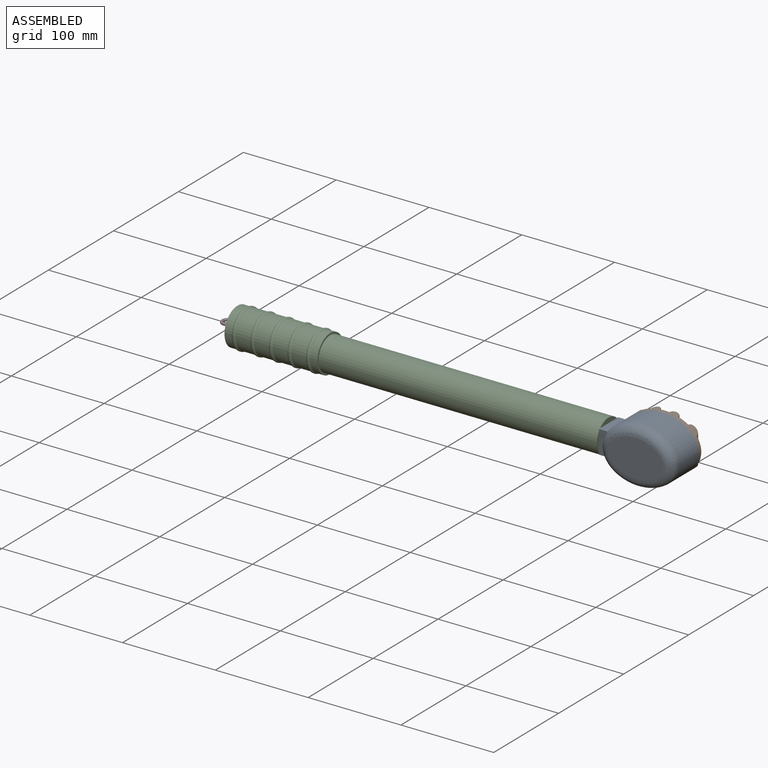
[diagram: assembled view]
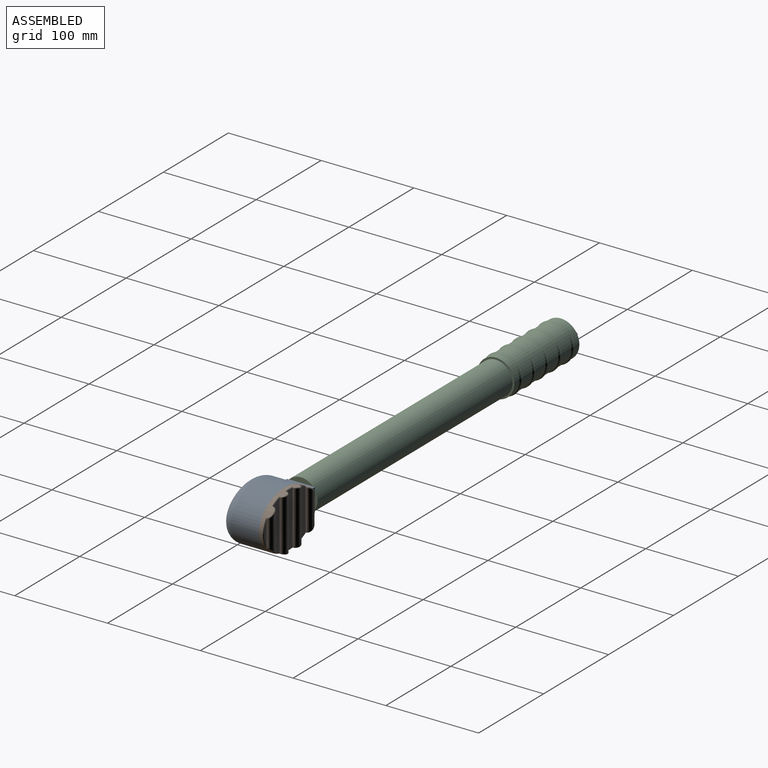
[diagram: assembled view, second angle]
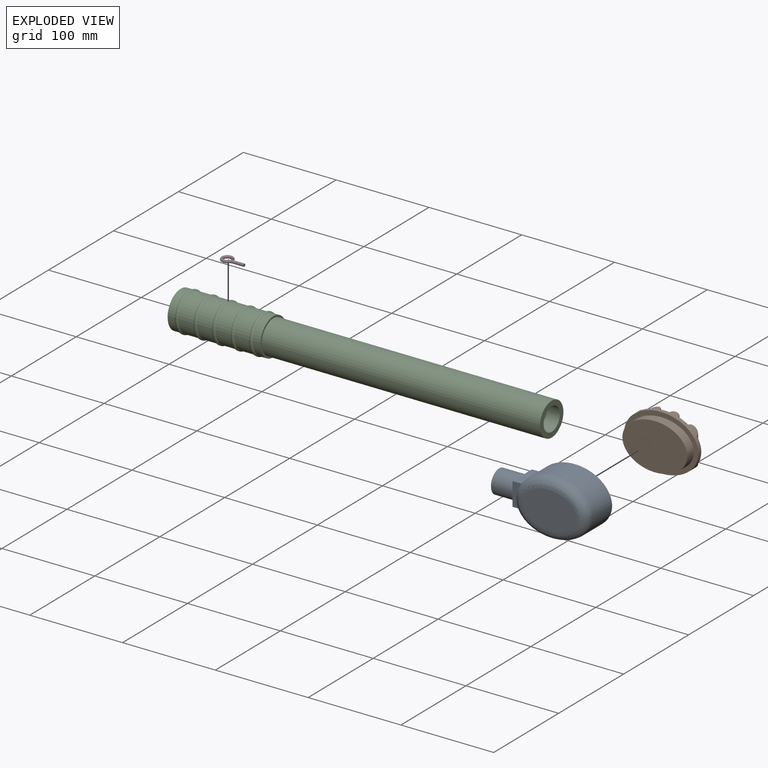
[diagram: exploded view]
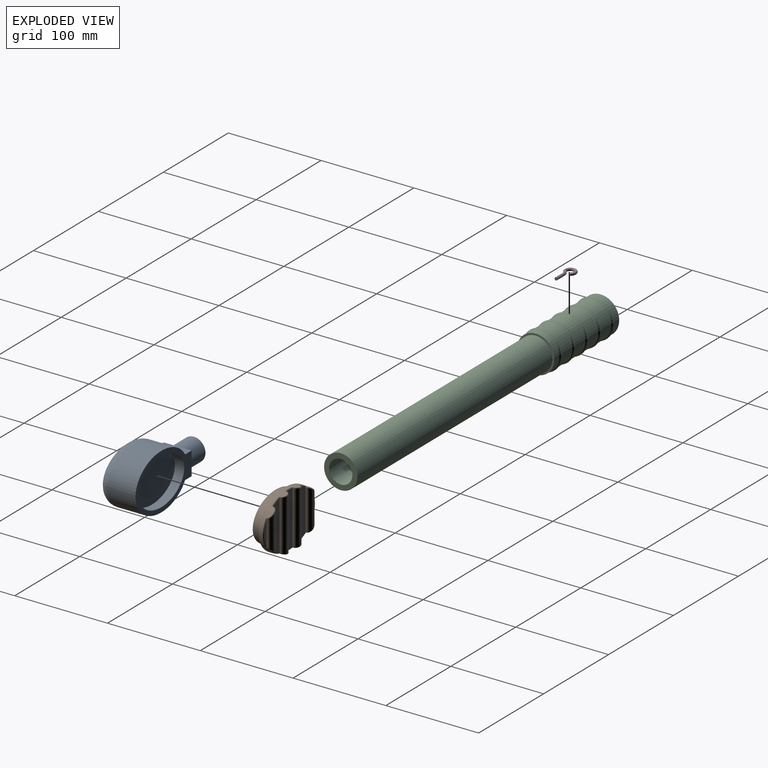
[diagram: exploded view, second angle]
ASSEMBLY  parts=4 mates=3
PART A: 13 faces, bbox 111.4x40x60 mm
  f0: plane 25x15mm, normal (1,0,0), area 129.6mm2, adj f3,f8,f9,f11
  f1: extruded ~76.36x59.94mm, area 5840mm2, adj f3,f4,f8,f9
  f2: plane 60.01x40.01mm, normal (0,-1,0), area 1874.9mm2, adj f4
  f3: plane 86.36x60mm, normal (0,1,0), area 1209.8mm2, adj f0,f1,f5,f8,f9
  f4: bspline ~80.05x60.02mm, area 3113.9mm2, adj f1,f2,f10
  f5: extruded ~70x50mm, area 1898.1mm2, adj f3,f6
  f6: plane 70x50mm, normal (0,1,0), area 2748.9mm2, adj f5
  f7: plane 25x15mm, normal (1,0,0), area 129.6mm2, adj f8,f9,f10,f11
  f8: plane 30x10mm, normal (0,0,1), area 300mm2, adj f0,f1,f3,f7,f10
  f9: plane 30x10mm, normal (0,0,-1), area 300mm2, adj f0,f1,f3,f7,f10
  f10: plane 25.03x10.02mm, normal (0,-1,0), area 188.8mm2, adj f4,f7,f8,f9
  f11: cylinder r=12.5mm len=25mm, axis (-1,0,0), area 1963.5mm2, adj f0,f7,f12
  f12: plane 25x25mm, normal (1,0,0), area 490.9mm2, adj f11
PART B: 29 faces, bbox 80x20.1x60 mm
  f0: extruded ~80x60mm, area 1207.5mm2, adj f11,f13,f14,f15,f16,f17,f18,f19
  f1: plane 58x10.03mm, normal (0,-1,0), area 578.4mm2, adj f2,f3,f18,f19,f20,f21,f22,f23
  f2: cylinder r=5mm len=57.31mm, axis (0,0,1), area 877.9mm2, adj f1,f6,f22,f23,f24,f25
  f3: cylinder r=5mm len=57.31mm, axis (0,0,1), area 877.9mm2, adj f1,f8,f16,f17,f18,f19
  f4: plane 25.57x4mm, normal (0,-1,0), area 68.9mm2, adj f5,f13
  f5: cylinder r=5mm len=43.21mm, axis (0,0,1), area 572.7mm2, adj f4,f8,f13,f14,f15
  f6: plane 53.58x10.21mm, normal (0,-1,0), area 495.3mm2, adj f2,f7,f24,f25,f26,f27
  f7: cylinder r=5mm len=43.21mm, axis (0,0,1), area 572.7mm2, adj f6,f9,f26,f27,f28
  f8: plane 53.58x10.21mm, normal (0,-1,0), area 495.3mm2, adj f3,f5,f14,f15,f16,f17
  f9: plane 25.57x4mm, normal (0,-1,0), area 68.9mm2, adj f7,f28
  f10: extruded ~70x50mm, area 1898.1mm2, adj f11,f12
  f11: plane 80x60mm, normal (0,1,0), area 1021mm2, adj f0,f10
  f12: plane 70x50mm, normal (0,1,0), area 2748.9mm2, adj f10
  f13: bspline ~33.9x8.29mm, area 47mm2, adj f0,f4,f5,f14,f15
  f14: bspline ~10.01x9.28mm, area 26.7mm2, adj f0,f5,f8,f13,f16
  f15: bspline ~10.01x9.29mm, area 26.7mm2, adj f0,f5,f8,f13,f17
  f16: bspline ~17.98x8.52mm, area 19.3mm2, adj f0,f3,f8,f14,f18
  f17: bspline ~18.4x9.23mm, area 19.3mm2, adj f0,f3,f8,f15,f19
  f18: bspline ~10.01x7.08mm, area 23.7mm2, adj f0,f1,f3,f16,f20
  f19: bspline ~10.01x6.96mm, area 23.7mm2, adj f0,f1,f3,f17,f21
  f20: bspline ~20.54x1.97mm, area 17.7mm2, adj f0,f1,f18,f22
  f21: bspline ~20.54x1.97mm, area 17.7mm2, adj f0,f1,f19,f23
  f22: bspline ~10.01x6.96mm, area 23.7mm2, adj f0,f1,f2,f20,f24
  f23: bspline ~10.01x7.08mm, area 23.7mm2, adj f0,f1,f2,f21,f25
  f24: bspline ~18.4x9.23mm, area 19.3mm2, adj f0,f2,f6,f22,f26
  f25: bspline ~17.98x8.52mm, area 19.3mm2, adj f0,f2,f6,f23,f27
  f26: bspline ~10.01x9.29mm, area 26.7mm2, adj f0,f6,f7,f24,f28
  f27: bspline ~10.01x9.28mm, area 26.7mm2, adj f0,f6,f7,f25,f28
  f28: bspline ~33.9x8.29mm, area 47mm2, adj f0,f7,f9,f26,f27
PART C: 19 faces, bbox 400x45.5x45.5 mm
  f0: torus R=18.5mm, axis (1,0,0), area 601.8mm2, adj f1,f14
  f1: cylinder r=20mm len=40mm, axis (1,0,0), area 2010.6mm2, adj f0,f2
  f2: torus R=18.5mm, axis (1,0,0), area 601.8mm2, adj f1,f3
  f3: cylinder r=20mm len=40mm, axis (1,0,0), area 2010.6mm2, adj f2,f4
  f4: torus R=18.5mm, axis (1,0,0), area 601.8mm2, adj f3,f5
  f5: cylinder r=20mm len=40mm, axis (1,0,0), area 2010.6mm2, adj f4,f6
  f6: torus R=18.5mm, axis (1,0,0), area 601.8mm2, adj f5,f7
  f7: cylinder r=20mm len=40mm, axis (1,0,0), area 1005.3mm2, adj f6,f8
  f8: plane 40x40mm, normal (-1,0,0), area 1249.6mm2, adj f7,f17
  f9: plane 36x36mm, normal (1,0,0), area 527mm2, adj f10,f15
  f10: cylinder r=18mm len=300mm, axis (1,0,0), area 33929.2mm2, adj f9,f11
  f11: plane 40x40mm, normal (1,0,0), area 238.8mm2, adj f10,f12
  f12: cylinder r=20mm len=40mm, axis (1,0,0), area 1005.3mm2, adj f11,f13
  f13: torus R=18.5mm, axis (1,0,0), area 601.8mm2, adj f12,f14
  f14: cylinder r=20mm len=40mm, axis (1,0,0), area 2010.6mm2, adj f0,f13
  f15: cylinder r=12.5mm len=25mm, axis (1,0,0), area 1963.5mm2, adj f9,f16
  f16: plane 25x25mm, normal (1,0,0), area 490.9mm2, adj f15
  f17: cylinder r=1.5mm len=7.5mm, axis (-1,0,0), area 70.7mm2, adj f8,f18
  f18: plane 3x3mm, normal (-1,0,0), area 7.1mm2, adj f17
PART D: 5 faces, bbox 14.1x3x26.7 mm
  f0: plane 3x3mm, normal (0,0,-1), area 7.1mm2, adj f2
  f1: plane 3x2.69mm, normal (-0.9,0,-0.44), area 7.1mm2, adj f4
  f2: cylinder r=1.5mm len=12.33mm, axis (0,0,1), area 116.2mm2, adj f0,f3
  f3: torus R=5mm, axis (0,-1,0), area 38.9mm2, adj f2,f4
  f4: torus R=5mm, axis (0,1,0), area 239.3mm2, adj f1,f3
PLACE A rot(axis=(0,1,0),180deg) t=(296.55,48.63,6.98)mm
PLACE B rot(axis=(1,0,0),180deg) t=(296.55,38.63,6.98)mm
PLACE C t=(-149.81,33.63,6.98)mm
PLACE D rot(axis=(-0.58,-0.58,0.58),120deg) t=(-142.31,33.63,6.98)mm
MATE fastened A.f11 <-> C.f15  axis (-1,0,0) through (225.19,33.63,6.98)mm
MATE fastened D.f2 <-> C.f17  axis (1,0,0) through (-142.31,33.63,6.98)mm
MATE fastened B.f12 <-> A.f6  axis (0,-1,0) through (296.55,38.63,6.98)mm
